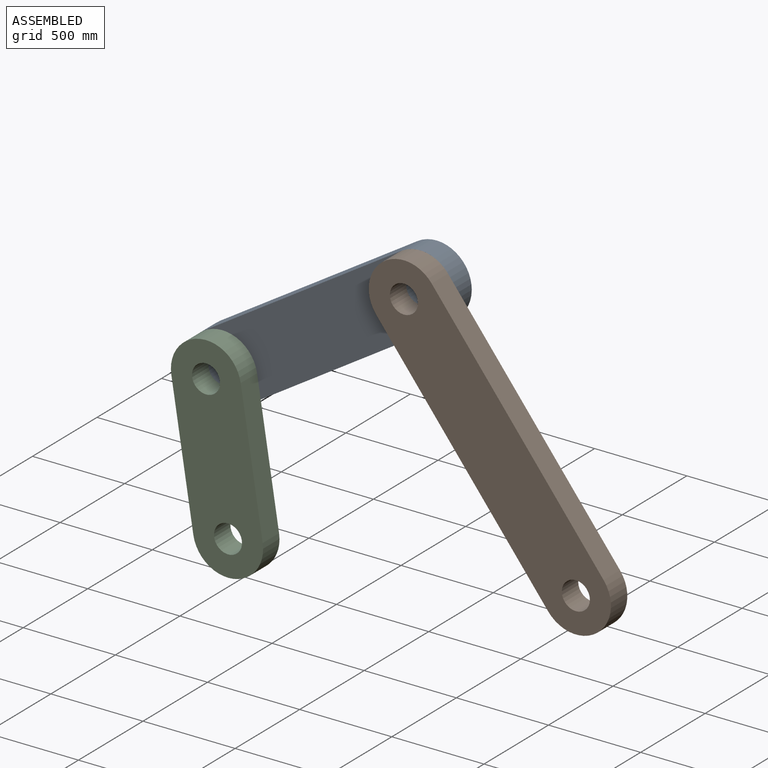
[diagram: assembled view]
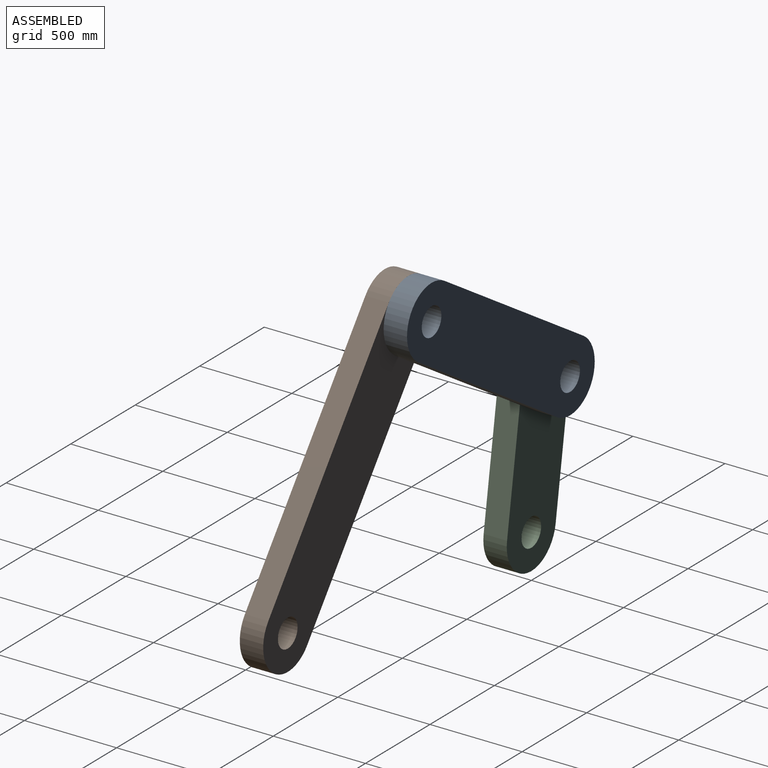
[diagram: assembled view, second angle]
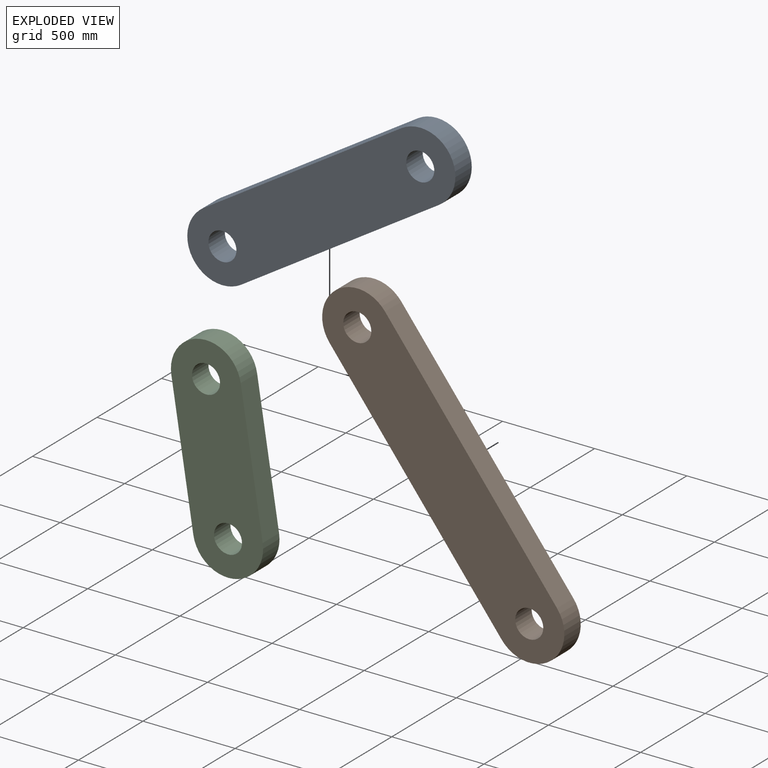
[diagram: exploded view]
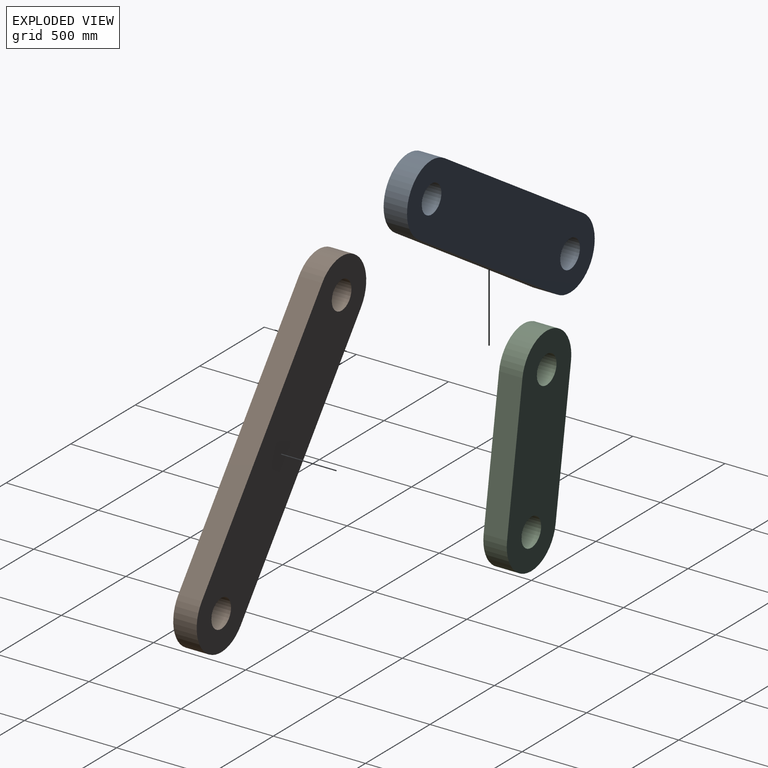
[diagram: exploded view, second angle]
ASSEMBLY  parts=3 mates=2
PART A: 8 faces, bbox 1651x127x381 mm
  f0: cylinder r=190.5mm len=381mm, axis (0,1,0), area 76006.1mm2, adj f1,f5,f6,f7
  f1: plane 1270x127mm, normal (0,0,-1), area 161290mm2, adj f0,f2,f6,f7
  f2: cylinder r=190.5mm len=381mm, axis (0,1,0), area 76006.1mm2, adj f1,f5,f6,f7
  f3: cylinder r=76.2mm len=152.4mm, axis (0,1,0), area 60804.9mm2, adj f6,f7
  f4: cylinder r=76.2mm len=152.4mm, axis (0,1,0), area 60804.9mm2, adj f6,f7
  f5: plane 1270x127mm, normal (0,0,1), area 161290mm2, adj f0,f2,f6,f7
  f6: plane 1651x381mm, normal (0,-1,0), area 561396.2mm2, adj f0,f1,f2,f3,f4,f5
  f7: plane 1651x381mm, normal (0,1,0), area 561396.2mm2, adj f0,f1,f2,f3,f4,f5
PART B: 8 faces, bbox 1905x127x381 mm
  f0: cylinder r=190.5mm len=381mm, axis (0,1,0), area 76006.1mm2, adj f1,f5,f6,f7
  f1: plane 1524x127mm, normal (0,0,-1), area 193548mm2, adj f0,f2,f6,f7
  f2: cylinder r=190.5mm len=381mm, axis (0,1,0), area 76006.1mm2, adj f1,f5,f6,f7
  f3: cylinder r=76.2mm len=152.4mm, axis (0,1,0), area 60804.9mm2, adj f6,f7
  f4: cylinder r=76.2mm len=152.4mm, axis (0,1,0), area 60804.9mm2, adj f6,f7
  f5: plane 1524x127mm, normal (0,0,1), area 193548mm2, adj f0,f2,f6,f7
  f6: plane 1905x381mm, normal (0,-1,0), area 658170.2mm2, adj f0,f1,f2,f3,f4,f5
  f7: plane 1905x381mm, normal (0,1,0), area 658170.2mm2, adj f0,f1,f2,f3,f4,f5
PART C: 8 faces, bbox 1143x127x381 mm
  f0: cylinder r=190.5mm len=381mm, axis (0,1,0), area 76006.1mm2, adj f1,f5,f6,f7
  f1: plane 762x127mm, normal (0,0,-1), area 96774mm2, adj f0,f2,f6,f7
  f2: cylinder r=190.5mm len=381mm, axis (0,1,0), area 76006.1mm2, adj f1,f5,f6,f7
  f3: cylinder r=76.2mm len=152.4mm, axis (0,1,0), area 60804.9mm2, adj f6,f7
  f4: cylinder r=76.2mm len=152.4mm, axis (0,1,0), area 60804.9mm2, adj f6,f7
  f5: plane 762x127mm, normal (0,0,1), area 96774mm2, adj f0,f2,f6,f7
  f6: plane 1143x381mm, normal (0,-1,0), area 367848.2mm2, adj f0,f1,f2,f3,f4,f5
  f7: plane 1143x381mm, normal (0,1,0), area 367848.2mm2, adj f0,f1,f2,f3,f4,f5
PLACE A rot(axis=(0,-1,0),32.3deg) t=(417.51,127,1091.93)mm
PLACE B rot(axis=(0,1,0),52.2deg) t=(1420.81,0,828.79)mm
PLACE C rot(axis=(0,1,0),81deg) t=(-59.61,0,376.31)mm
MATE revolute B.f0 <-> A.f2  axis (0,1,0) through (954.24,0,1431.25)mm
MATE revolute A.f0 <-> C.f0  axis (0,-1,0) through (-119.23,0,752.61)mm
